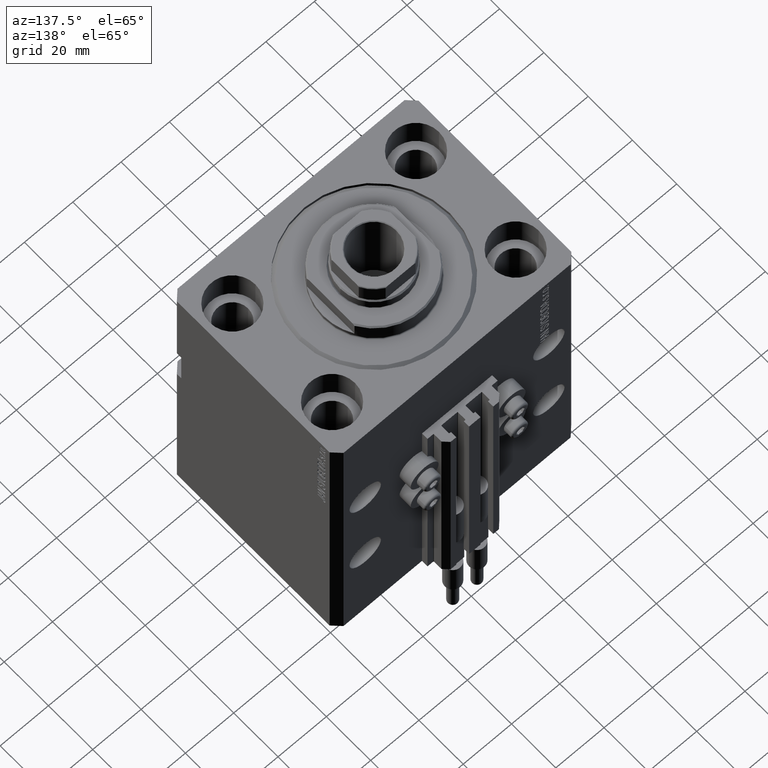
[diagram: clean part render]
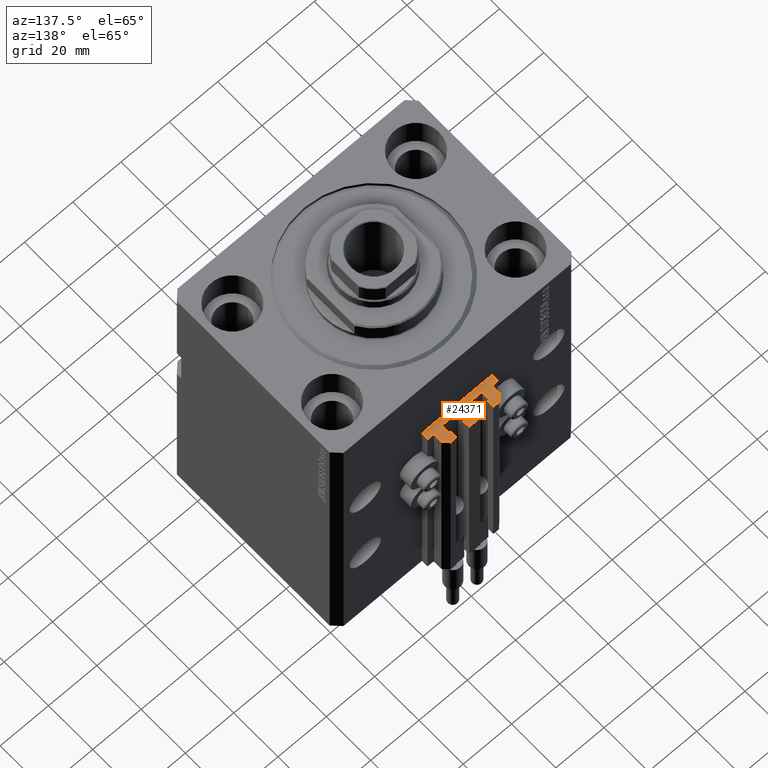
[diagram: same view with one face highlighted and labeled with its STEP entity id]
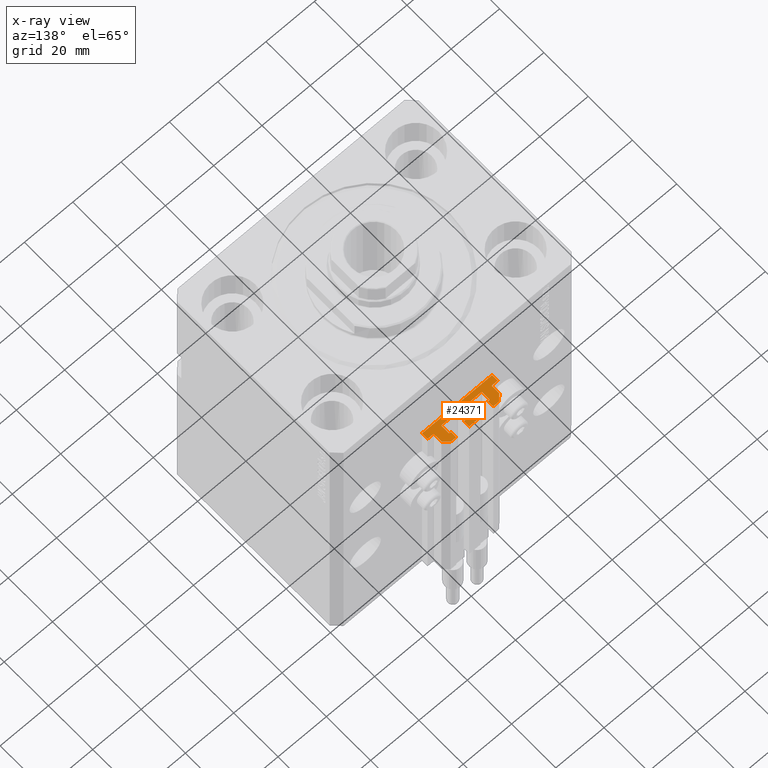
[diagram: x-ray of the same camera — body ghosted, the highlighted face saturated]
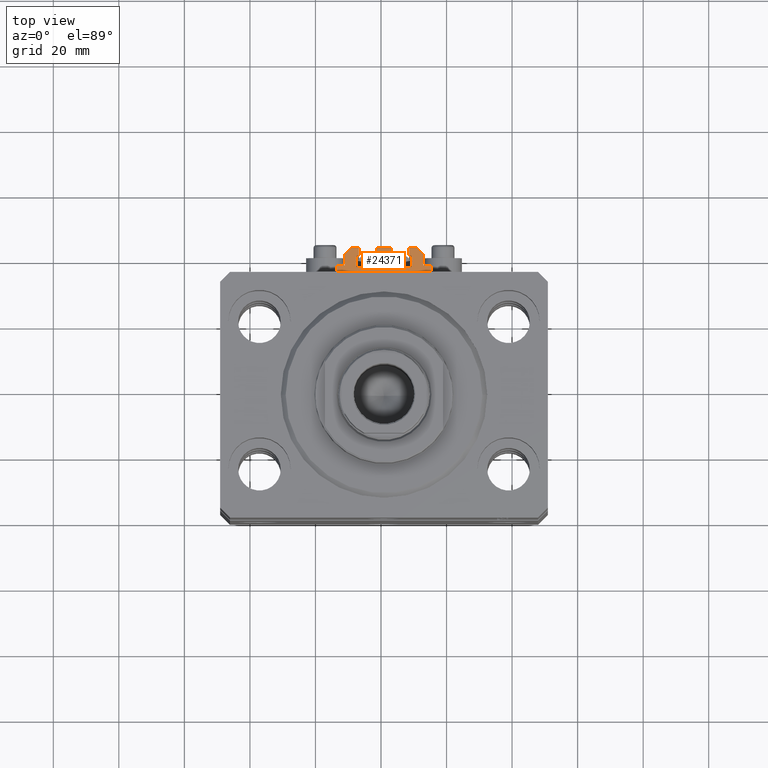
[diagram: same view with one face highlighted and labeled with its STEP entity id]
A machine part, auxiliary view. The second image highlights one B-rep face of the part: STEP entity #24371.
The next image is the same camera in x-ray: the body ghosted, the highlighted face saturated — about 0% of this face is hidden behind the body in this view.
A second angle (top view) of the same face is appended — the face is thin or edge-on in the first view.
In plain terms, the highlighted planar face has unit normal (0, 0, 1).
Its self-contained STEP definition (entity closure, byte-faithful):
#5 = CARTESIAN_POINT ( 'NONE',  ( -12.00000000000000000, 43.49999999999998579, -33.00000000000000000 ) ) ;
#46 = DIRECTION ( 'NONE',  ( 0.000000000000000000, 0.000000000000000000, 1.000000000000000000 ) ) ;
#81 = AXIS2_PLACEMENT_3D ( 'NONE', #30274, #23586, #38687 ) ;
#93 = CARTESIAN_POINT ( 'NONE',  ( 2.349999999999999645, 45.50000000000000711, -33.00000000000000000 ) ) ;
#555 = CARTESIAN_POINT ( 'NONE',  ( 8.400000000000000355, 42.90000000000001990, -33.00000000000000000 ) ) ;
#923 = DIRECTION ( 'NONE',  ( 0.000000000000000000, 0.000000000000000000, 1.000000000000000000 ) ) ;
#959 = EDGE_CURVE ( 'NONE', #16891, #16179, #24469, .T. ) ;
#1045 = VERTEX_POINT ( 'NONE', #13528 ) ;
#1110 = LINE ( 'NONE', #23924, #2406 ) ;
#1289 = DIRECTION ( 'NONE',  ( 0.000000000000000000, 1.000000000000000000, 0.000000000000000000 ) ) ;
#1416 = EDGE_CURVE ( 'NONE', #37763, #15156, #30787, .T. ) ;
#1520 = EDGE_CURVE ( 'NONE', #35614, #40709, #12442, .T. ) ;
#1771 = VECTOR ( 'NONE', #41105, 1000.000000000000000 ) ;
#1782 = CARTESIAN_POINT ( 'NONE',  ( 1.600000000000000533, 39.69999999999999574, -33.00000000000000000 ) ) ;
#1799 = VERTEX_POINT ( 'NONE', #20579 ) ;
#2041 = CARTESIAN_POINT ( 'NONE',  ( 12.20000000000000107, 40.20000000000002416, -33.00000000000000000 ) ) ;
#2262 = DIRECTION ( 'NONE',  ( 1.000000000000000000, 0.000000000000000000, 0.000000000000000000 ) ) ;
#2303 = DIRECTION ( 'NONE',  ( 1.000000000000000000, 0.000000000000000000, 0.000000000000000000 ) ) ;
#2406 = VECTOR ( 'NONE', #5554, 1000.000000000000114 ) ;
#2453 = ORIENTED_EDGE ( 'NONE', *, *, #18275, .F. ) ;
#2488 = CARTESIAN_POINT ( 'NONE',  ( -14.50000000000000000, 37.50000000000000000, -33.00000000000000000 ) ) ;
#2502 = VERTEX_POINT ( 'NONE', #24855 ) ;
#2543 = EDGE_CURVE ( 'NONE', #27452, #33426, #29531, .T. ) ;
#2544 = DIRECTION ( 'NONE',  ( 1.000000000000000000, 0.000000000000000000, 0.000000000000000000 ) ) ;
#2618 = VERTEX_POINT ( 'NONE', #14159 ) ;
#3034 = CARTESIAN_POINT ( 'NONE',  ( 1.800000000000000933, 42.90000000000000568, -33.00000000000000000 ) ) ;
#3235 = DIRECTION ( 'NONE',  ( 0.000000000000000000, 0.000000000000000000, 1.000000000000000000 ) ) ;
#3314 = VERTEX_POINT ( 'NONE', #15074 ) ;
#3662 = VERTEX_POINT ( 'NONE', #10559 ) ;
#3840 = DIRECTION ( 'NONE',  ( -1.000000000000000000, 0.000000000000000000, 0.000000000000000000 ) ) ;
#3948 = CARTESIAN_POINT ( 'NONE',  ( -1.600000000000000755, 39.69999999999999574, -33.00000000000000000 ) ) ;
#3992 = CARTESIAN_POINT ( 'NONE',  ( 8.199999999999999289, 39.70000000000000284, -33.00000000000000000 ) ) ;
#4250 = CARTESIAN_POINT ( 'NONE',  ( 14.49999999999999645, 37.50000000000000711, -33.00000000000000000 ) ) ;
#4321 = EDGE_CURVE ( 'NONE', #3314, #14658, #10379, .T. ) ;
#4322 = CARTESIAN_POINT ( 'NONE',  ( -8.399999999999996803, 39.69999999999999574, -33.00000000000000000 ) ) ;
#4421 = VERTEX_POINT ( 'NONE', #39113 ) ;
#4505 = CARTESIAN_POINT ( 'NONE',  ( -10.00000000000000000, 45.49999999999999289, -33.00000000000000000 ) ) ;
#4690 = CARTESIAN_POINT ( 'NONE',  ( -12.00000000000000000, 40.19999999999998863, -33.00000000000000000 ) ) ;
#5028 = VERTEX_POINT ( 'NONE', #13696 ) ;
#5195 = ORIENTED_EDGE ( 'NONE', *, *, #2543, .T. ) ;
#5232 = CIRCLE ( 'NONE', #46403, 0.1999999999999998723 ) ;
#5281 = VERTEX_POINT ( 'NONE', #31926 ) ;
#5554 = DIRECTION ( 'NONE',  ( -0.7071067811865474617, 0.7071067811865474617, 0.000000000000000000 ) ) ;
#6361 = AXIS2_PLACEMENT_3D ( 'NONE', #17942, #10236, #40230 ) ;
#6529 = VECTOR ( 'NONE', #1289, 1000.000000000000000 ) ;
#6620 = ORIENTED_EDGE ( 'NONE', *, *, #31437, .F. ) ;
#6636 = LINE ( 'NONE', #21778, #6784 ) ;
#6691 = CARTESIAN_POINT ( 'NONE',  ( 1.800000000000000933, 39.50000000000000000, -33.00000000000000000 ) ) ;
#6742 = CARTESIAN_POINT ( 'NONE',  ( 8.400000000000000355, 39.70000000000000995, -33.00000000000000000 ) ) ;
#6784 = VECTOR ( 'NONE', #36885, 1000.000000000000000 ) ;
#7210 = VECTOR ( 'NONE', #10017, 1000.000000000000000 ) ;
#7424 = VERTEX_POINT ( 'NONE', #16310 ) ;
#7587 = VECTOR ( 'NONE', #42913, 1000.000000000000000 ) ;
#7745 = CARTESIAN_POINT ( 'NONE',  ( -1.599999999999997868, 42.90000000000000568, -33.00000000000000000 ) ) ;
#7825 = CARTESIAN_POINT ( 'NONE',  ( -7.650000000000002132, 43.09999999999999432, -33.00000000000000000 ) ) ;
#8035 = ORIENTED_EDGE ( 'NONE', *, *, #959, .T. ) ;
#8041 = ORIENTED_EDGE ( 'NONE', *, *, #20763, .F. ) ;
#8111 = VERTEX_POINT ( 'NONE', #36375 ) ;
#8545 = VERTEX_POINT ( 'NONE', #30207 ) ;
#8579 = ORIENTED_EDGE ( 'NONE', *, *, #40437, .T. ) ;
#8853 = CARTESIAN_POINT ( 'NONE',  ( -1.600000000000000533, 42.90000000000000568, -33.00000000000000000 ) ) ;
#9608 = VECTOR ( 'NONE', #2303, 1000.000000000000000 ) ;
#9709 = DIRECTION ( 'NONE',  ( 0.000000000000000000, 0.000000000000000000, 1.000000000000000000 ) ) ;
#9719 = VECTOR ( 'NONE', #13572, 1000.000000000000000 ) ;
#9857 = AXIS2_PLACEMENT_3D ( 'NONE', #43188, #9709, #24377 ) ;
#10017 = DIRECTION ( 'NONE',  ( 1.000000000000000000, 1.261617073437673039E-14, 0.000000000000000000 ) ) ;
#10074 = EDGE_CURVE ( 'NONE', #2618, #47571, #34499, .T. ) ;
#10211 = VERTEX_POINT ( 'NONE', #3948 ) ;
#10236 = DIRECTION ( 'NONE',  ( 0.000000000000000000, 0.000000000000000000, 1.000000000000000000 ) ) ;
#10364 = LINE ( 'NONE', #24794, #13194 ) ;
#10379 = LINE ( 'NONE', #17355, #24854 ) ;
#10391 = VECTOR ( 'NONE', #24482, 1000.000000000000000 ) ;
#10454 = LINE ( 'NONE', #41173, #9608 ) ;
#10537 = ORIENTED_EDGE ( 'NONE', *, *, #16146, .F. ) ;
#10559 = CARTESIAN_POINT ( 'NONE',  ( -14.50000000000000000, 39.99999999999999289, -33.00000000000000000 ) ) ;
#10841 = AXIS2_PLACEMENT_3D ( 'NONE', #37189, #3235, #38663 ) ;
#11264 = ORIENTED_EDGE ( 'NONE', *, *, #16826, .T. ) ;
#11335 = ORIENTED_EDGE ( 'NONE', *, *, #14961, .T. ) ;
#11454 = CIRCLE ( 'NONE', #9857, 0.2000000000000005107 ) ;
#11544 = VECTOR ( 'NONE', #15661, 1000.000000000000000 ) ;
#12281 = EDGE_CURVE ( 'NONE', #8111, #35363, #12684, .T. ) ;
#12350 = EDGE_LOOP ( 'NONE', ( #11335, #21375, #33987, #15048, #30900, #47849, #28091, #40258, #29989, #30056, #31037, #45128, #38359, #28527, #29226, #46383, #8041, #5195, #48057, #2453, #47148, #37206, #10537, #31441, #6620, #48595, #20802, #8579, #12637, #16773, #30704, #8035, #32675, #42094, #27745, #11264 ) ) ;
#12434 = LINE ( 'NONE', #31523, #7587 ) ;
#12442 = LINE ( 'NONE', #1782, #6529 ) ;
#12450 = VERTEX_POINT ( 'NONE', #15610 ) ;
#12517 = CARTESIAN_POINT ( 'NONE',  ( 12.00000000000000178, 40.20000000000002416, -33.00000000000000000 ) ) ;
#12637 = ORIENTED_EDGE ( 'NONE', *, *, #24427, .F. ) ;
#12684 = CIRCLE ( 'NONE', #47495, 0.2000000000000005107 ) ;
#12947 = EDGE_CURVE ( 'NONE', #40888, #5281, #1110, .T. ) ;
#13101 = EDGE_CURVE ( 'NONE', #37763, #12450, #26195, .T. ) ;
#13194 = VECTOR ( 'NONE', #29465, 1000.000000000000227 ) ;
#13228 = CARTESIAN_POINT ( 'NONE',  ( 7.649999999999998579, 45.50000000000002842, -33.00000000000000000 ) ) ;
#13528 = CARTESIAN_POINT ( 'NONE',  ( 14.49999999999999645, 37.50000000000000711, -33.00000000000000000 ) ) ;
#13572 = DIRECTION ( 'NONE',  ( 0.000000000000000000, 1.000000000000000000, 0.000000000000000000 ) ) ;
#13636 = CARTESIAN_POINT ( 'NONE',  ( 11.99999999999999822, 40.20000000000002416, -33.00000000000000000 ) ) ;
#13696 = CARTESIAN_POINT ( 'NONE',  ( 7.649999999999998579, 45.50000000000002842, -33.00000000000000000 ) ) ;
#13787 = LINE ( 'NONE', #43522, #18514 ) ;
#13987 = EDGE_CURVE ( 'NONE', #32190, #2502, #47930, .T. ) ;
#14159 = CARTESIAN_POINT ( 'NONE',  ( -1.800000000000000933, 39.50000000000000000, -33.00000000000000000 ) ) ;
#14364 = EDGE_CURVE ( 'NONE', #48886, #19472, #42643, .T. ) ;
#14442 = EDGE_CURVE ( 'NONE', #48886, #15156, #35750, .T. ) ;
#14658 = VERTEX_POINT ( 'NONE', #7825 ) ;
#14961 = EDGE_CURVE ( 'NONE', #3662, #34309, #38990, .T. ) ;
#15048 = ORIENTED_EDGE ( 'NONE', *, *, #28082, .T. ) ;
#15074 = CARTESIAN_POINT ( 'NONE',  ( -8.199999999999999289, 43.09999999999999432, -33.00000000000000000 ) ) ;
#15156 = VERTEX_POINT ( 'NONE', #6742 ) ;
#15167 = DIRECTION ( 'NONE',  ( 1.000000000000000000, 0.000000000000000000, 0.000000000000000000 ) ) ;
#15168 = CARTESIAN_POINT ( 'NONE',  ( -1.800000000000000933, 39.50000000000000000, -33.00000000000000000 ) ) ;
#15610 = CARTESIAN_POINT ( 'NONE',  ( 8.200000000000001066, 43.10000000000002984, -33.00000000000000000 ) ) ;
#15661 = DIRECTION ( 'NONE',  ( -1.000000000000000000, 0.000000000000000000, 0.000000000000000000 ) ) ;
#15882 = DIRECTION ( 'NONE',  ( -1.000000000000000000, -1.084202172485504828E-15, 0.000000000000000000 ) ) ;
#16146 = EDGE_CURVE ( 'NONE', #31253, #2502, #23941, .T. ) ;
#16179 = VERTEX_POINT ( 'NONE', #4505 ) ;
#16310 = CARTESIAN_POINT ( 'NONE',  ( 12.20000000000000107, 40.00000000000002132, -33.00000000000000000 ) ) ;
#16675 = FACE_OUTER_BOUND ( 'NONE', #12350, .T. ) ;
#16773 = ORIENTED_EDGE ( 'NONE', *, *, #4321, .T. ) ;
#16826 = EDGE_CURVE ( 'NONE', #8111, #3662, #29125, .T. ) ;
#16891 = VERTEX_POINT ( 'NONE', #32593 ) ;
#16968 = VERTEX_POINT ( 'NONE', #93 ) ;
#17060 = CARTESIAN_POINT ( 'NONE',  ( -7.650000000000002132, 43.09999999999999432, -33.00000000000000000 ) ) ;
#17355 = CARTESIAN_POINT ( 'NONE',  ( -8.199999999999999289, 43.09999999999999432, -33.00000000000000000 ) ) ;
#17562 = CARTESIAN_POINT ( 'NONE',  ( 12.00000000000000000, 43.50000000000002132, -33.00000000000000000 ) ) ;
#17596 = CIRCLE ( 'NONE', #31845, 0.2000000000000022593 ) ;
#17895 = CARTESIAN_POINT ( 'NONE',  ( 1.800000000000000933, 43.10000000000001563, -33.00000000000000000 ) ) ;
#17942 = CARTESIAN_POINT ( 'NONE',  ( 8.200000000000001066, 42.90000000000001990, -33.00000000000000000 ) ) ;
#17962 = CARTESIAN_POINT ( 'NONE',  ( -12.20000000000000107, 39.99999999999998579, -33.00000000000000000 ) ) ;
#18275 = EDGE_CURVE ( 'NONE', #4421, #16968, #10454, .T. ) ;
#18514 = VECTOR ( 'NONE', #47967, 1000.000000000000000 ) ;
#18827 = CARTESIAN_POINT ( 'NONE',  ( -14.50000000000000000, 37.50000000000000000, -33.00000000000000000 ) ) ;
#19456 = DIRECTION ( 'NONE',  ( -1.084202172485506406E-15, 1.000000000000000000, 0.000000000000000000 ) ) ;
#19472 = VERTEX_POINT ( 'NONE', #6691 ) ;
#19610 = VECTOR ( 'NONE', #3840, 1000.000000000000000 ) ;
#20035 = LINE ( 'NONE', #23262, #29315 ) ;
#20063 = VERTEX_POINT ( 'NONE', #13636 ) ;
#20066 = EDGE_CURVE ( 'NONE', #34309, #1045, #28773, .T. ) ;
#20084 = EDGE_CURVE ( 'NONE', #20063, #7424, #17596, .T. ) ;
#20281 = LINE ( 'NONE', #8853, #10391 ) ;
#20389 = EDGE_CURVE ( 'NONE', #14658, #16891, #39846, .T. ) ;
#20427 = CARTESIAN_POINT ( 'NONE',  ( -8.199999999999997513, 39.50000000000000000, -33.00000000000000000 ) ) ;
#20579 = CARTESIAN_POINT ( 'NONE',  ( 7.649999999999998579, 43.10000000000002984, -33.00000000000000000 ) ) ;
#20694 = CIRCLE ( 'NONE', #81, 0.1999999999999987899 ) ;
#20763 = EDGE_CURVE ( 'NONE', #27452, #40709, #42160, .T. ) ;
#20802 = ORIENTED_EDGE ( 'NONE', *, *, #46924, .F. ) ;
#21293 = CARTESIAN_POINT ( 'NONE',  ( 1.600000000000001421, 39.69999999999999574, -33.00000000000000000 ) ) ;
#21355 = DIRECTION ( 'NONE',  ( 0.000000000000000000, 0.000000000000000000, 1.000000000000000000 ) ) ;
#21375 = ORIENTED_EDGE ( 'NONE', *, *, #20066, .T. ) ;
#21568 = CARTESIAN_POINT ( 'NONE',  ( 7.649999999999998579, 43.10000000000002984, -33.00000000000000000 ) ) ;
#21778 = CARTESIAN_POINT ( 'NONE',  ( -2.350000000000003642, 45.50000000000000711, -33.00000000000000000 ) ) ;
#22450 = CARTESIAN_POINT ( 'NONE',  ( 9.999999999999998224, 45.50000000000002842, -33.00000000000000000 ) ) ;
#22697 = LINE ( 'NONE', #22450, #19610 ) ;
#23046 = VECTOR ( 'NONE', #43864, 1000.000000000000000 ) ;
#23093 = EDGE_CURVE ( 'NONE', #33426, #16968, #13787, .T. ) ;
#23098 = LINE ( 'NONE', #4250, #46807 ) ;
#23262 = CARTESIAN_POINT ( 'NONE',  ( -12.00000000000000000, 43.49999999999998579, -33.00000000000000000 ) ) ;
#23499 = CARTESIAN_POINT ( 'NONE',  ( 1.800000000000000933, 39.69999999999999574, -33.00000000000000000 ) ) ;
#23586 = DIRECTION ( 'NONE',  ( 0.000000000000000000, 0.000000000000000000, 1.000000000000000000 ) ) ;
#23826 = DIRECTION ( 'NONE',  ( 1.000000000000000000, 0.000000000000000000, 0.000000000000000000 ) ) ;
#23924 = CARTESIAN_POINT ( 'NONE',  ( 12.00000000000000000, 43.50000000000002132, -33.00000000000000000 ) ) ;
#23939 = DIRECTION ( 'NONE',  ( -5.256737805990328981E-16, 1.000000000000000000, 0.000000000000000000 ) ) ;
#23941 = CIRCLE ( 'NONE', #40493, 0.2000000000000031197 ) ;
#24371 = ADVANCED_FACE ( 'NONE', ( #16675 ), #32283, .T. ) ;
#24377 = DIRECTION ( 'NONE',  ( 1.000000000000000000, 0.000000000000000000, 0.000000000000000000 ) ) ;
#24427 = EDGE_CURVE ( 'NONE', #3314, #8545, #11454, .T. ) ;
#24469 = LINE ( 'NONE', #40047, #40628 ) ;
#24482 = DIRECTION ( 'NONE',  ( -6.776263578034385456E-17, -1.000000000000000000, 0.000000000000000000 ) ) ;
#24646 = DIRECTION ( 'NONE',  ( 0.000000000000000000, -1.000000000000000000, 0.000000000000000000 ) ) ;
#24792 = AXIS2_PLACEMENT_3D ( 'NONE', #3034, #47889, #2544 ) ;
#24794 = CARTESIAN_POINT ( 'NONE',  ( -10.00000000000000000, 45.49999999999999289, -33.00000000000000000 ) ) ;
#24854 = VECTOR ( 'NONE', #25523, 1000.000000000000000 ) ;
#24855 = CARTESIAN_POINT ( 'NONE',  ( -1.800000000000000933, 43.10000000000001563, -33.00000000000000000 ) ) ;
#24917 = CARTESIAN_POINT ( 'NONE',  ( 8.199999999999999289, 39.50000000000000711, -33.00000000000000000 ) ) ;
#25332 = DIRECTION ( 'NONE',  ( 1.000000000000000000, -1.261617073437681085E-14, 0.000000000000000000 ) ) ;
#25523 = DIRECTION ( 'NONE',  ( 1.000000000000000000, 0.000000000000000000, 0.000000000000000000 ) ) ;
#26021 = CARTESIAN_POINT ( 'NONE',  ( 12.20000000000000107, 40.20000000000002416, -33.00000000000000000 ) ) ;
#26085 = VERTEX_POINT ( 'NONE', #5 ) ;
#26195 = CIRCLE ( 'NONE', #6361, 0.2000000000000040079 ) ;
#26754 = DIRECTION ( 'NONE',  ( 0.000000000000000000, 0.000000000000000000, 1.000000000000000000 ) ) ;
#27452 = VERTEX_POINT ( 'NONE', #34833 ) ;
#27547 = CARTESIAN_POINT ( 'NONE',  ( 8.199999999999999289, 39.50000000000000711, -33.00000000000000000 ) ) ;
#27745 = ORIENTED_EDGE ( 'NONE', *, *, #12281, .F. ) ;
#28082 = EDGE_CURVE ( 'NONE', #44068, #7424, #12434, .T. ) ;
#28091 = ORIENTED_EDGE ( 'NONE', *, *, #12947, .T. ) ;
#28527 = ORIENTED_EDGE ( 'NONE', *, *, #14364, .T. ) ;
#28564 = EDGE_CURVE ( 'NONE', #4421, #32190, #6636, .T. ) ;
#28565 = DIRECTION ( 'NONE',  ( 0.000000000000000000, 0.000000000000000000, 1.000000000000000000 ) ) ;
#28773 = LINE ( 'NONE', #18827, #1771 ) ;
#28883 = DIRECTION ( 'NONE',  ( -1.000000000000000000, 3.016910393003142859E-15, 0.000000000000000000 ) ) ;
#29087 = CARTESIAN_POINT ( 'NONE',  ( 1.600000000000000533, 42.90000000000000568, -33.00000000000000000 ) ) ;
#29125 = LINE ( 'NONE', #17962, #29480 ) ;
#29226 = ORIENTED_EDGE ( 'NONE', *, *, #31925, .F. ) ;
#29315 = VECTOR ( 'NONE', #45541, 1000.000000000000000 ) ;
#29408 = AXIS2_PLACEMENT_3D ( 'NONE', #3992, #34480, #23826 ) ;
#29465 = DIRECTION ( 'NONE',  ( -0.7071067811865460184, -0.7071067811865490160, 0.000000000000000000 ) ) ;
#29480 = VECTOR ( 'NONE', #28883, 1000.000000000000000 ) ;
#29531 = LINE ( 'NONE', #17895, #40589 ) ;
#29827 = VECTOR ( 'NONE', #23939, 1000.000000000000000 ) ;
#29838 = EDGE_CURVE ( 'NONE', #16179, #26085, #10364, .T. ) ;
#29970 = DIRECTION ( 'NONE',  ( 1.000000000000000000, 0.000000000000000000, 0.000000000000000000 ) ) ;
#29989 = ORIENTED_EDGE ( 'NONE', *, *, #41503, .T. ) ;
#30056 = ORIENTED_EDGE ( 'NONE', *, *, #47114, .T. ) ;
#30207 = CARTESIAN_POINT ( 'NONE',  ( -8.400000000000000355, 42.89999999999999147, -33.00000000000000000 ) ) ;
#30274 = CARTESIAN_POINT ( 'NONE',  ( -8.199999999999997513, 39.69999999999999574, -33.00000000000000000 ) ) ;
#30325 = EDGE_CURVE ( 'NONE', #20063, #40888, #31364, .T. ) ;
#30577 = DIRECTION ( 'NONE',  ( 0.000000000000000000, -1.000000000000000000, 0.000000000000000000 ) ) ;
#30671 = CARTESIAN_POINT ( 'NONE',  ( -8.399999999999996803, 39.69999999999999574, -33.00000000000000000 ) ) ;
#30704 = ORIENTED_EDGE ( 'NONE', *, *, #20389, .T. ) ;
#30787 = LINE ( 'NONE', #555, #35019 ) ;
#30900 = ORIENTED_EDGE ( 'NONE', *, *, #20084, .F. ) ;
#31037 = ORIENTED_EDGE ( 'NONE', *, *, #13101, .F. ) ;
#31253 = VERTEX_POINT ( 'NONE', #7745 ) ;
#31364 = LINE ( 'NONE', #12517, #29827 ) ;
#31437 = EDGE_CURVE ( 'NONE', #2618, #10211, #41623, .T. ) ;
#31441 = ORIENTED_EDGE ( 'NONE', *, *, #48566, .T. ) ;
#31523 = CARTESIAN_POINT ( 'NONE',  ( 14.49999999999999645, 40.00000000000002132, -33.00000000000000000 ) ) ;
#31845 = AXIS2_PLACEMENT_3D ( 'NONE', #26021, #26754, #29970 ) ;
#31920 = VERTEX_POINT ( 'NONE', #30671 ) ;
#31925 = EDGE_CURVE ( 'NONE', #35614, #19472, #5232, .T. ) ;
#31926 = CARTESIAN_POINT ( 'NONE',  ( 9.999999999999998224, 45.50000000000002842, -33.00000000000000000 ) ) ;
#32190 = VERTEX_POINT ( 'NONE', #33853 ) ;
#32283 = PLANE ( 'NONE',  #39130 ) ;
#32593 = CARTESIAN_POINT ( 'NONE',  ( -7.650000000000002132, 45.49999999999999289, -33.00000000000000000 ) ) ;
#32675 = ORIENTED_EDGE ( 'NONE', *, *, #29838, .T. ) ;
#33194 = VECTOR ( 'NONE', #19456, 1000.000000000000000 ) ;
#33426 = VERTEX_POINT ( 'NONE', #41907 ) ;
#33853 = CARTESIAN_POINT ( 'NONE',  ( -2.350000000000003197, 43.10000000000000853, -33.00000000000000000 ) ) ;
#33987 = ORIENTED_EDGE ( 'NONE', *, *, #47918, .T. ) ;
#34309 = VERTEX_POINT ( 'NONE', #2488 ) ;
#34480 = DIRECTION ( 'NONE',  ( 0.000000000000000000, 0.000000000000000000, 1.000000000000000000 ) ) ;
#34499 = LINE ( 'NONE', #15168, #11544 ) ;
#34642 = DIRECTION ( 'NONE',  ( 1.000000000000000000, 0.000000000000000000, 0.000000000000000000 ) ) ;
#34833 = CARTESIAN_POINT ( 'NONE',  ( 1.800000000000000933, 43.10000000000001563, -33.00000000000000000 ) ) ;
#34964 = VECTOR ( 'NONE', #30577, 1000.000000000000000 ) ;
#35012 = EDGE_CURVE ( 'NONE', #5281, #5028, #22697, .T. ) ;
#35019 = VECTOR ( 'NONE', #38477, 1000.000000000000000 ) ;
#35363 = VERTEX_POINT ( 'NONE', #4690 ) ;
#35509 = DIRECTION ( 'NONE',  ( 1.000000000000000000, 0.000000000000000000, -0.000000000000000000 ) ) ;
#35614 = VERTEX_POINT ( 'NONE', #21293 ) ;
#35750 = CIRCLE ( 'NONE', #29408, 0.1999999999999987899 ) ;
#36375 = CARTESIAN_POINT ( 'NONE',  ( -12.20000000000000107, 39.99999999999998579, -33.00000000000000000 ) ) ;
#36885 = DIRECTION ( 'NONE',  ( 1.807003620809174632E-16, -1.000000000000000000, 0.000000000000000000 ) ) ;
#37189 = CARTESIAN_POINT ( 'NONE',  ( -1.800000000000000933, 39.69999999999999574, -33.00000000000000000 ) ) ;
#37206 = ORIENTED_EDGE ( 'NONE', *, *, #13987, .T. ) ;
#37229 = CARTESIAN_POINT ( 'NONE',  ( -1.800000000000000933, 42.90000000000000568, -33.00000000000000000 ) ) ;
#37763 = VERTEX_POINT ( 'NONE', #42239 ) ;
#38203 = DIRECTION ( 'NONE',  ( 0.000000000000000000, 1.000000000000000000, 0.000000000000000000 ) ) ;
#38359 = ORIENTED_EDGE ( 'NONE', *, *, #14442, .F. ) ;
#38477 = DIRECTION ( 'NONE',  ( -5.421010862427508365E-16, -1.000000000000000000, 0.000000000000000000 ) ) ;
#38663 = DIRECTION ( 'NONE',  ( 1.000000000000000000, 0.000000000000000000, 0.000000000000000000 ) ) ;
#38687 = DIRECTION ( 'NONE',  ( 1.000000000000000000, 0.000000000000000000, 0.000000000000000000 ) ) ;
#38990 = LINE ( 'NONE', #45920, #34964 ) ;
#39113 = CARTESIAN_POINT ( 'NONE',  ( -2.350000000000003642, 45.50000000000000711, -33.00000000000000000 ) ) ;
#39130 = AXIS2_PLACEMENT_3D ( 'NONE', #2041, #28565, #35509 ) ;
#39846 = LINE ( 'NONE', #17060, #9719 ) ;
#40047 = CARTESIAN_POINT ( 'NONE',  ( -7.650000000000002132, 45.49999999999999289, -33.00000000000000000 ) ) ;
#40230 = DIRECTION ( 'NONE',  ( 1.000000000000000000, 0.000000000000000000, 0.000000000000000000 ) ) ;
#40258 = ORIENTED_EDGE ( 'NONE', *, *, #35012, .T. ) ;
#40437 = EDGE_CURVE ( 'NONE', #31920, #8545, #41498, .T. ) ;
#40475 = CARTESIAN_POINT ( 'NONE',  ( 14.49999999999999645, 40.00000000000002132, -33.00000000000000000 ) ) ;
#40493 = AXIS2_PLACEMENT_3D ( 'NONE', #37229, #46, #15167 ) ;
#40589 = VECTOR ( 'NONE', #25332, 1000.000000000000000 ) ;
#40628 = VECTOR ( 'NONE', #43040, 1000.000000000000000 ) ;
#40647 = CARTESIAN_POINT ( 'NONE',  ( -12.20000000000000107, 40.19999999999998863, -33.00000000000000000 ) ) ;
#40709 = VERTEX_POINT ( 'NONE', #29087 ) ;
#40888 = VERTEX_POINT ( 'NONE', #17562 ) ;
#41105 = DIRECTION ( 'NONE',  ( 1.000000000000000000, 2.392722035830078972E-16, 0.000000000000000000 ) ) ;
#41173 = CARTESIAN_POINT ( 'NONE',  ( -2.350000000000003642, 45.50000000000000711, -33.00000000000000000 ) ) ;
#41498 = LINE ( 'NONE', #4322, #33194 ) ;
#41503 = EDGE_CURVE ( 'NONE', #5028, #1799, #47183, .T. ) ;
#41623 = CIRCLE ( 'NONE', #10841, 0.1999999999999994282 ) ;
#41907 = CARTESIAN_POINT ( 'NONE',  ( 2.349999999999999645, 43.10000000000000853, -33.00000000000000000 ) ) ;
#42094 = ORIENTED_EDGE ( 'NONE', *, *, #45047, .T. ) ;
#42160 = CIRCLE ( 'NONE', #24792, 0.2000000000000033418 ) ;
#42239 = CARTESIAN_POINT ( 'NONE',  ( 8.400000000000003908, 42.90000000000001990, -33.00000000000000000 ) ) ;
#42643 = LINE ( 'NONE', #27547, #43616 ) ;
#42709 = VECTOR ( 'NONE', #24646, 1000.000000000000000 ) ;
#42913 = DIRECTION ( 'NONE',  ( -1.000000000000000000, 0.000000000000000000, 0.000000000000000000 ) ) ;
#43040 = DIRECTION ( 'NONE',  ( -1.000000000000000000, 0.000000000000000000, 0.000000000000000000 ) ) ;
#43188 = CARTESIAN_POINT ( 'NONE',  ( -8.199999999999997513, 42.89999999999999147, -33.00000000000000000 ) ) ;
#43522 = CARTESIAN_POINT ( 'NONE',  ( 2.349999999999999645, 43.10000000000000853, -33.00000000000000000 ) ) ;
#43616 = VECTOR ( 'NONE', #15882, 1000.000000000000000 ) ;
#43864 = DIRECTION ( 'NONE',  ( 1.000000000000000000, 0.000000000000000000, 0.000000000000000000 ) ) ;
#43975 = CARTESIAN_POINT ( 'NONE',  ( -2.350000000000003197, 43.10000000000000853, -33.00000000000000000 ) ) ;
#44068 = VERTEX_POINT ( 'NONE', #40475 ) ;
#44103 = LINE ( 'NONE', #21568, #23046 ) ;
#45047 = EDGE_CURVE ( 'NONE', #26085, #35363, #20035, .T. ) ;
#45128 = ORIENTED_EDGE ( 'NONE', *, *, #1416, .T. ) ;
#45541 = DIRECTION ( 'NONE',  ( 0.000000000000000000, -1.000000000000000000, 0.000000000000000000 ) ) ;
#45920 = CARTESIAN_POINT ( 'NONE',  ( -14.50000000000000000, 39.99999999999999289, -33.00000000000000000 ) ) ;
#46383 = ORIENTED_EDGE ( 'NONE', *, *, #1520, .T. ) ;
#46403 = AXIS2_PLACEMENT_3D ( 'NONE', #23499, #923, #34642 ) ;
#46807 = VECTOR ( 'NONE', #38203, 1000.000000000000000 ) ;
#46924 = EDGE_CURVE ( 'NONE', #31920, #47571, #20694, .T. ) ;
#47114 = EDGE_CURVE ( 'NONE', #1799, #12450, #44103, .T. ) ;
#47148 = ORIENTED_EDGE ( 'NONE', *, *, #28564, .T. ) ;
#47183 = LINE ( 'NONE', #13228, #42709 ) ;
#47495 = AXIS2_PLACEMENT_3D ( 'NONE', #40647, #21355, #2262 ) ;
#47571 = VERTEX_POINT ( 'NONE', #20427 ) ;
#47849 = ORIENTED_EDGE ( 'NONE', *, *, #30325, .T. ) ;
#47889 = DIRECTION ( 'NONE',  ( 0.000000000000000000, 0.000000000000000000, 1.000000000000000000 ) ) ;
#47918 = EDGE_CURVE ( 'NONE', #1045, #44068, #23098, .T. ) ;
#47930 = LINE ( 'NONE', #43975, #7210 ) ;
#47967 = DIRECTION ( 'NONE',  ( 0.000000000000000000, 1.000000000000000000, 0.000000000000000000 ) ) ;
#48057 = ORIENTED_EDGE ( 'NONE', *, *, #23093, .T. ) ;
#48566 = EDGE_CURVE ( 'NONE', #31253, #10211, #20281, .T. ) ;
#48595 = ORIENTED_EDGE ( 'NONE', *, *, #10074, .T. ) ;
#48886 = VERTEX_POINT ( 'NONE', #24917 ) ;